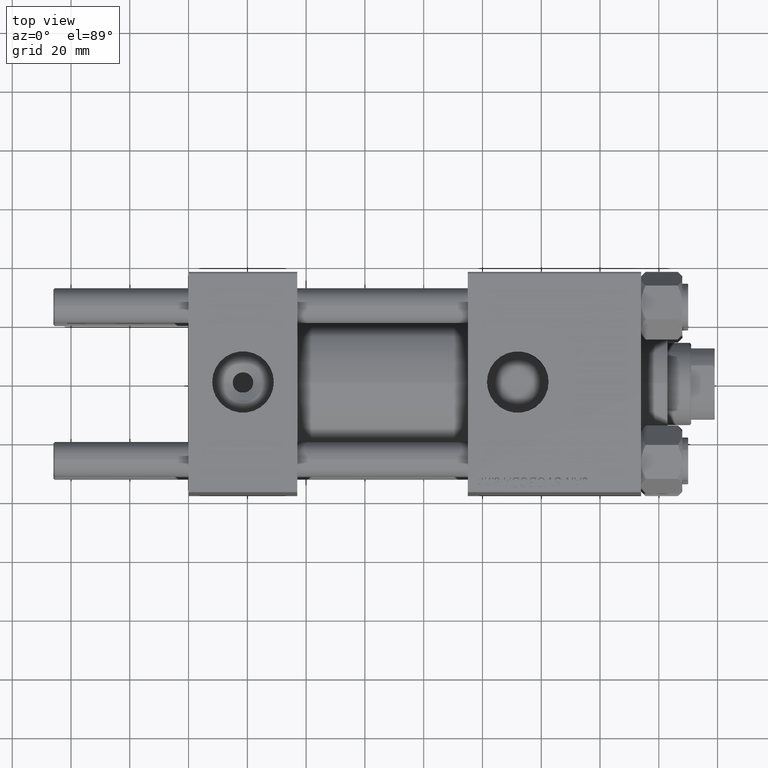
[diagram: clean part render]
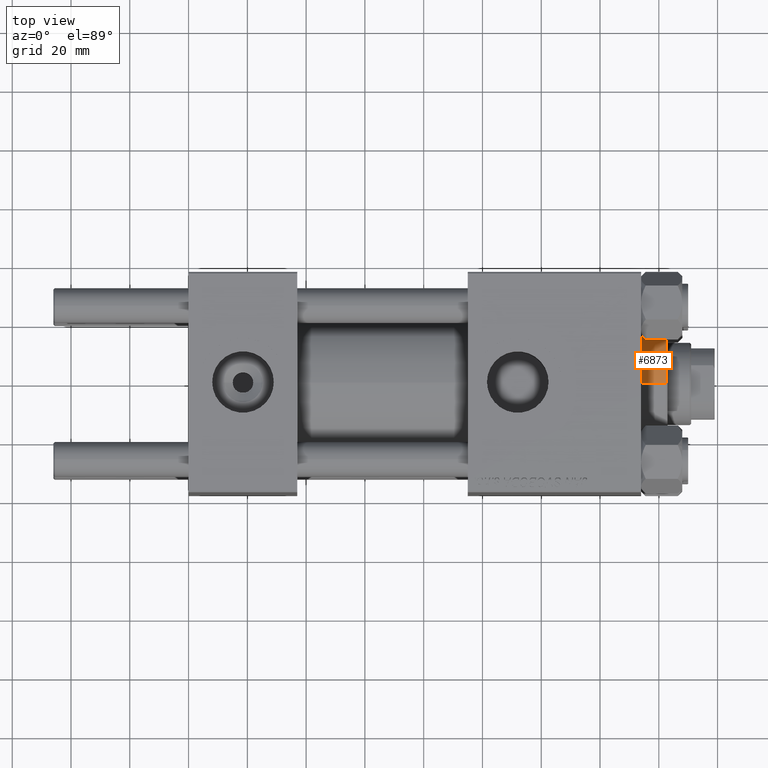
[diagram: same view with one face highlighted and labeled with its STEP entity id]
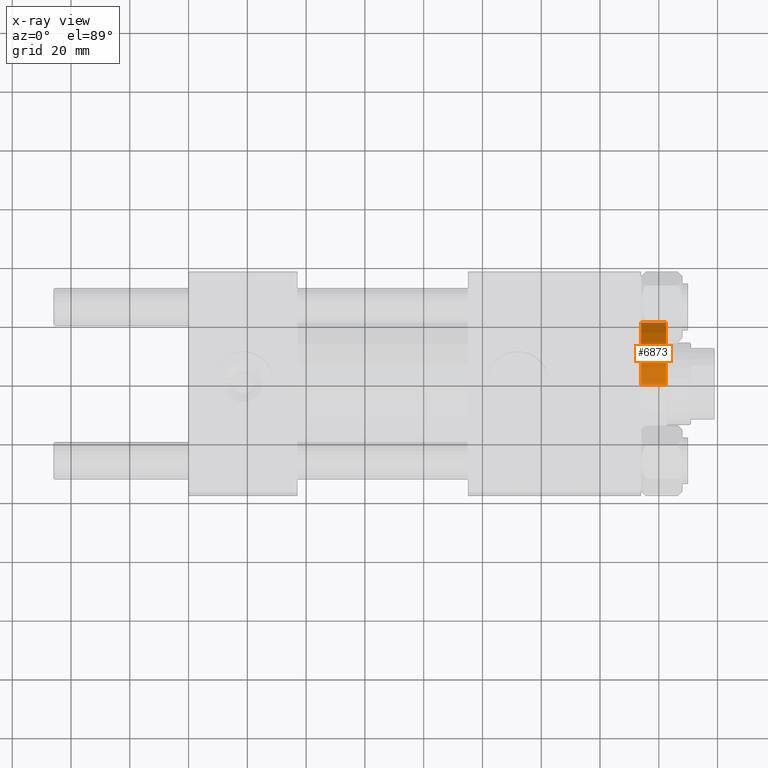
[diagram: x-ray of the same camera — body ghosted, the highlighted face saturated]
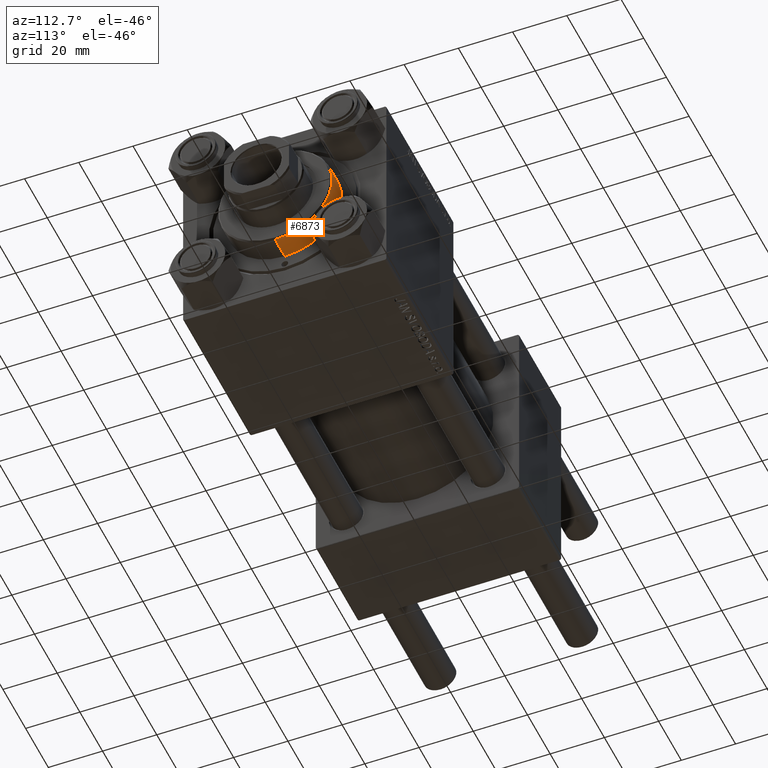
[diagram: same view with one face highlighted and labeled with its STEP entity id]
A machine part, top view. The second image highlights one B-rep face of the part: STEP entity #6873.
The next image is the same camera in x-ray: the body ghosted, the highlighted face saturated — about 9% of this face is hidden behind the body in this view.
A second angle (auxiliary view) of the same face is appended — the face is thin or edge-on in the first view.
In plain terms, the highlighted cylindrical surface (partial cylindrical patch) has radius 21 mm, axis along (-1, -0, 0).
Its self-contained STEP definition (entity closure, byte-faithful):
#2526 = EDGE_CURVE ( 'NONE', #46605, #15938, #10105, .T. ) ;
#5847 = ORIENTED_EDGE ( 'NONE', *, *, #31070, .F. ) ;
#6873 = ADVANCED_FACE ( 'NONE', ( #13779 ), #25605, .T. ) ;
#7175 = ORIENTED_EDGE ( 'NONE', *, *, #22192, .T. ) ;
#8807 = AXIS2_PLACEMENT_3D ( 'NONE', #49926, #16808, #38345 ) ;
#10105 = LINE ( 'NONE', #25478, #10801 ) ;
#10801 = VECTOR ( 'NONE', #38031, 1000.000000000000000 ) ;
#13779 = FACE_OUTER_BOUND ( 'NONE', #34627, .T. ) ;
#15938 = VERTEX_POINT ( 'NONE', #30904 ) ;
#16808 = DIRECTION ( 'NONE',  ( 0.000000000000000000, 0.000000000000000000, 1.000000000000000000 ) ) ;
#17821 = CARTESIAN_POINT ( 'NONE',  ( -21.00000000000000000, 0.000000000000000000, 37.69999999999999574 ) ) ;
#18476 = VECTOR ( 'NONE', #33191, 1000.000000000000000 ) ;
#21591 = LINE ( 'NONE', #17821, #18476 ) ;
#22192 = EDGE_CURVE ( 'NONE', #32091, #46605, #47187, .T. ) ;
#22402 = CARTESIAN_POINT ( 'NONE',  ( 0.000000000000000000, 0.000000000000000000, 37.19999999999999574 ) ) ;
#25478 = CARTESIAN_POINT ( 'NONE',  ( 21.00000000000000000, 2.571758278209441661E-15, 37.69999999999999574 ) ) ;
#25605 = CYLINDRICAL_SURFACE ( 'NONE', #45499, 21.00000000000000000 ) ;
#26357 = ORIENTED_EDGE ( 'NONE', *, *, #30161, .T. ) ;
#26938 = DIRECTION ( 'NONE',  ( 1.000000000000000000, 0.000000000000000000, 0.000000000000000000 ) ) ;
#27069 = AXIS2_PLACEMENT_3D ( 'NONE', #22402, #38300, #26938 ) ;
#29144 = DIRECTION ( 'NONE',  ( -1.000000000000000000, 0.000000000000000000, 0.000000000000000000 ) ) ;
#29754 = CIRCLE ( 'NONE', #8807, 21.00000000000000000 ) ;
#30161 = EDGE_CURVE ( 'NONE', #15938, #33262, #29754, .T. ) ;
#30904 = CARTESIAN_POINT ( 'NONE',  ( 21.00000000000000000, 2.571758278209441661E-15, 28.69999999999999929 ) ) ;
#31070 = EDGE_CURVE ( 'NONE', #32091, #33262, #21591, .T. ) ;
#32091 = VERTEX_POINT ( 'NONE', #37682 ) ;
#33191 = DIRECTION ( 'NONE',  ( -0.000000000000000000, -0.000000000000000000, -1.000000000000000000 ) ) ;
#33262 = VERTEX_POINT ( 'NONE', #42191 ) ;
#34627 = EDGE_LOOP ( 'NONE', ( #7175, #34948, #26357, #5847 ) ) ;
#34635 = CARTESIAN_POINT ( 'NONE',  ( 21.00000000000000000, 2.571758278209441661E-15, 37.19999999999999574 ) ) ;
#34948 = ORIENTED_EDGE ( 'NONE', *, *, #2526, .T. ) ;
#37682 = CARTESIAN_POINT ( 'NONE',  ( -21.00000000000000000, 0.000000000000000000, 37.19999999999999574 ) ) ;
#38031 = DIRECTION ( 'NONE',  ( -0.000000000000000000, -0.000000000000000000, -1.000000000000000000 ) ) ;
#38300 = DIRECTION ( 'NONE',  ( 0.000000000000000000, 0.000000000000000000, -1.000000000000000000 ) ) ;
#38345 = DIRECTION ( 'NONE',  ( 1.000000000000000000, 0.000000000000000000, 0.000000000000000000 ) ) ;
#41254 = DIRECTION ( 'NONE',  ( -0.000000000000000000, -0.000000000000000000, -1.000000000000000000 ) ) ;
#42191 = CARTESIAN_POINT ( 'NONE',  ( -21.00000000000000000, 0.000000000000000000, 28.69999999999999929 ) ) ;
#45499 = AXIS2_PLACEMENT_3D ( 'NONE', #48309, #41254, #29144 ) ;
#46605 = VERTEX_POINT ( 'NONE', #34635 ) ;
#47187 = CIRCLE ( 'NONE', #27069, 21.00000000000000000 ) ;
#48309 = CARTESIAN_POINT ( 'NONE',  ( 0.000000000000000000, 0.000000000000000000, 37.69999999999999574 ) ) ;
#49926 = CARTESIAN_POINT ( 'NONE',  ( 0.000000000000000000, 0.000000000000000000, 28.69999999999999929 ) ) ;